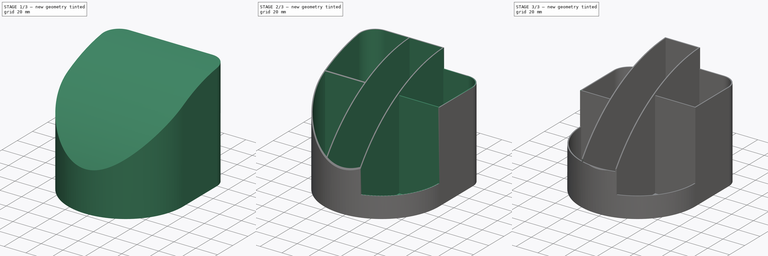
[diagram: build sequence overview — one tinted view per stage of 3, left to right]
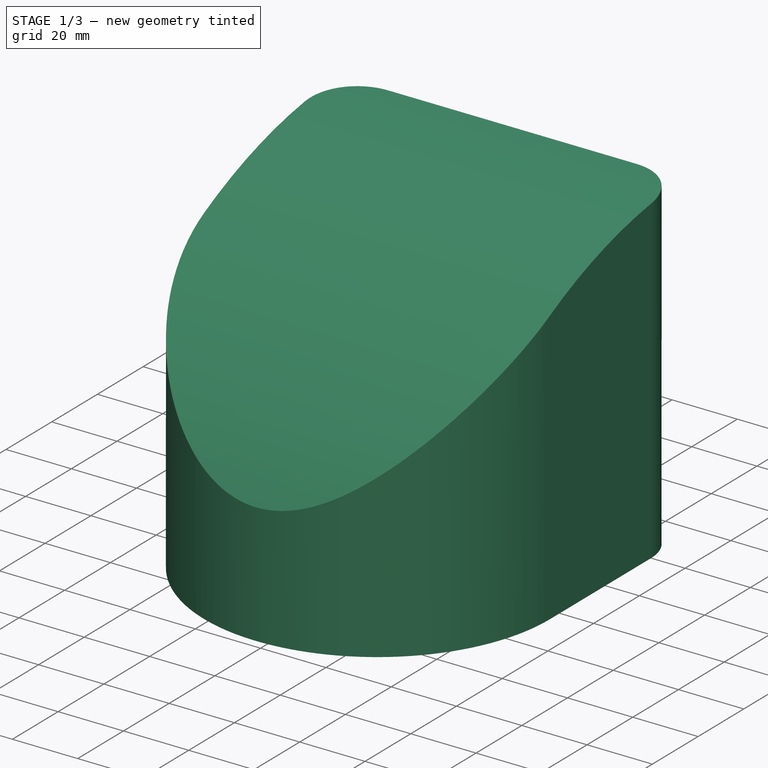
[diagram: stage 1 of 3 — iso view after this stage's code; geometry added in this stage tinted green]
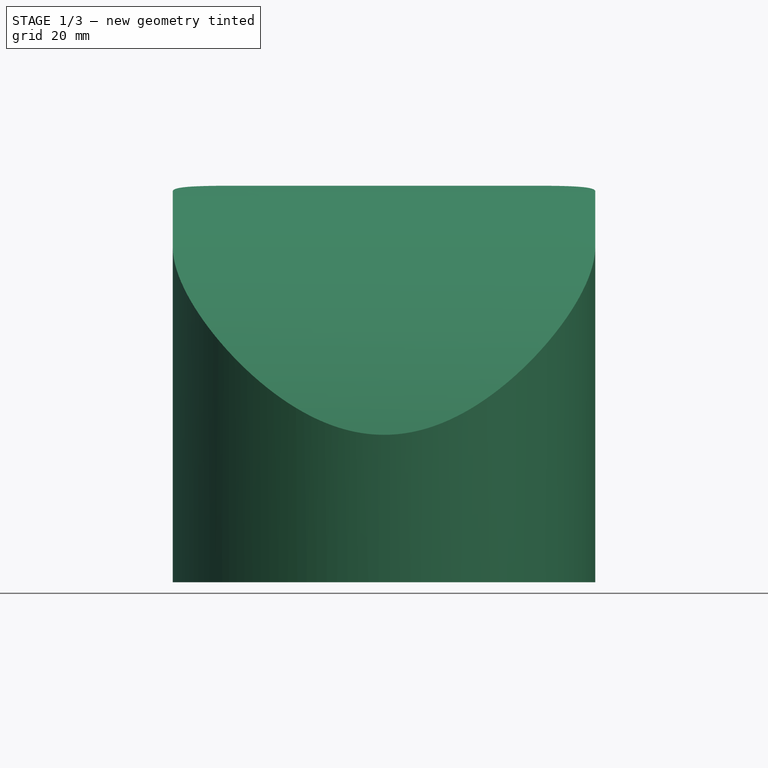
[diagram: stage 1 of 3 — front view after this stage's code; geometry added in this stage tinted green]
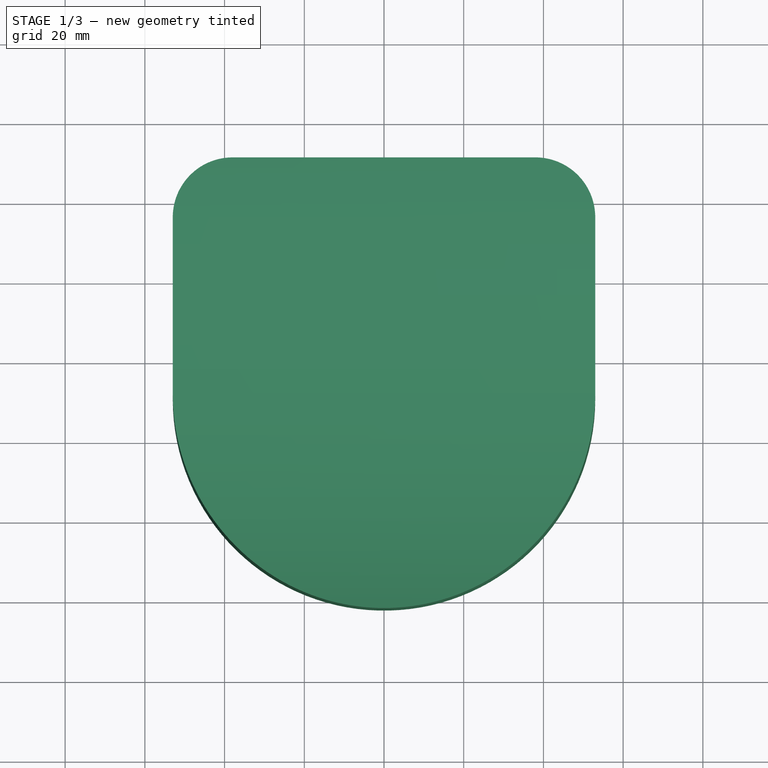
[diagram: stage 1 of 3 — top view after this stage's code; geometry added in this stage tinted green]
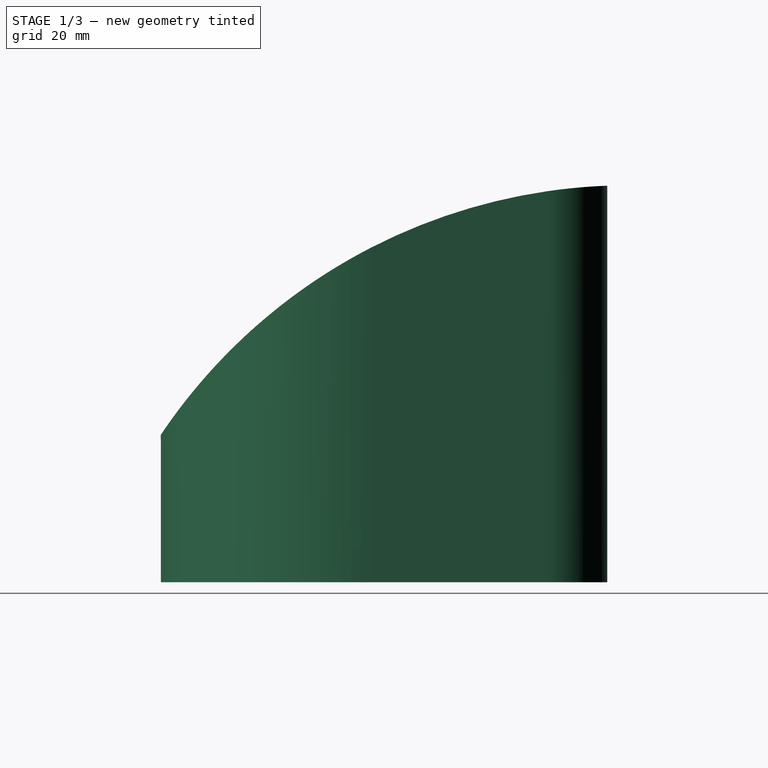
[diagram: stage 1 of 3 — right view after this stage's code; geometry added in this stage tinted green]
FCSTD DOCUMENT  (FreeCAD 0.21R33771 (Git))
Label: Подставка
License: All rights reserved
LicenseURL: https://en.wikipedia.org/wiki/All_rights_reserved
objects: Sketcher::SketchObject×6, PartDesign::Pocket×5, PartDesign::Plane×3, PartDesign::Pad×1, PartDesign::Body×1
note: 22 computed .brp shape members not serialized (recipe doc carries the construction recipe); baked Part::Feature solids carry a one-line shape summary decoded from their .brp

FEATURE [Sketcher::SketchObject] Sketch
  FullyConstrained = true
  MapMode = 5
  Support = -> [XY_Plane]
  sketch-geometry (7):
    g0: LineSegment StartX=-53 StartY=15 StartZ=0 EndX=-53 EndY=-29 EndZ=0
    g1: LineSegment StartX=53 StartY=15 StartZ=0 EndX=53 EndY=-29 EndZ=0
    g2: LineSegment StartX=-38 StartY=30 StartZ=0 EndX=38 EndY=30 EndZ=0
    g3: ArcOfCircle CenterX=0 CenterY=-29 CenterZ=0 NormalX=0 NormalY=0 NormalZ=1 AngleXU=0 Radius=53 StartAngle=3.14159 EndAngle=6.28319
    g4: ArcOfCircle CenterX=38 CenterY=15 CenterZ=0 NormalX=0 NormalY=0 NormalZ=1 AngleXU=0 Radius=15 StartAngle=1e-16 EndAngle=1.5708
    g5: ArcOfCircle CenterX=-38 CenterY=15 CenterZ=0 NormalX=0 NormalY=0 NormalZ=1 AngleXU=0 Radius=15 StartAngle=1.5708 EndAngle=3.14159
    g6: GeomPoint X=0 Y=-82 Z=0
  constraints (17):
    c: Horizontal(g2)
    c: Coincident(g5,g0)
    c: Equal(g4,g5)
    c: Symmetric(g1,g0,g-2)
    c: Vertical(g1)
    c: Tangent(g4,g2) = 1.5708
    c: Tangent(g4,g1) = 1.5708
    c: Tangent(g5,g2) = 1.5708
    c: Tangent(g5,g-1)
    c: Tangent(g3,g0) = -1.5708
    c: PointOnObject(g3,g-2)
    c: Radius(g3) = 53
    c: Radius(g4) = 15
    c: PointOnObject(g6,g3)
    c: PointOnObject(g6,g-2)
    c: DistanceY(g6,g2) = 112
    c: Tangent(g3,g1) = 1.5708
FEATURE [PartDesign::Pad] Pad
  Direction = (0,0,1)
  Length = 99.5
  Length2 = 10
  Profile = -> Sketch
  ReferenceAxis = -> Sketch [N_Axis]
  Type = 0
FEATURE [PartDesign::Plane] DatumPlane
  Length = 135.617
  MapMode = 5
  Placement = pos=(53,0,0) rot=(0.57735,0.57735,0.57735;2.0944rad)
  ResizeMode = 0
  Support = -> [Pad]
  Width = 148.117
FEATURE [Sketcher::SketchObject] Sketch001
  ExternalGeometry = -> [Pad]
  FullyConstrained = false
  MapMode = 5
  Placement = pos=(53,0,0) rot=(0.57735,0.57735,0.57735;2.0944rad)
  Support = -> [DatumPlane]
  sketch-geometry (5):
    g0: ArcOfCircle CenterX=35.3888 CenterY=-41.7587 CenterZ=0 NormalX=0 NormalY=0 NormalZ=1 AngleXU=0 Radius=141.361 StartAngle=1.60893 EndAngle=2.55065
    g1: LineSegment StartX=-82 StartY=37 StartZ=0 EndX=-89.5557 EndY=37 EndZ=0
    g2: LineSegment StartX=30 StartY=99.5 StartZ=0 EndX=30 EndY=106.401 EndZ=0
    g3: LineSegment StartX=30 StartY=106.401 StartZ=0 EndX=-89.5557 EndY=106.401 EndZ=0
    g4: LineSegment StartX=-89.5557 StartY=106.401 StartZ=0 EndX=-89.5557 EndY=37 EndZ=0
  constraints (12):
    c: DistanceY(g-4,g0) = 37
    c: Vertical(g-4,g0)
    c: Coincident(g0,g-6)
    c: Coincident(g1,g0)
    c: Coincident(g2,g0)
    c: Coincident(g3,g2)
    c: Horizontal(g3)
    c: Coincident(g4,g3)
    c: Coincident(g4,g1)
    c: Vertical(g4)
    c: Horizontal(g1)
    c: Vertical(g2)
FEATURE [PartDesign::Pocket] Pocket
  BaseFeature = -> Pad
  Direction = (-1,0,0)
  Length = 5
  Length2 = 5
  Profile = -> Sketch001
  ReferenceAxis = -> Sketch001 [N_Axis]
  Type = 1
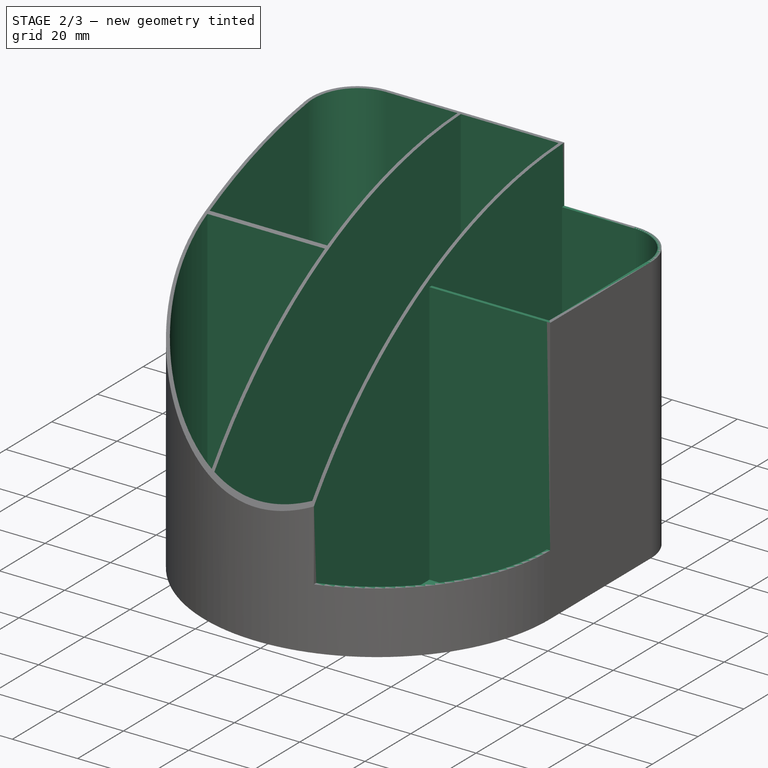
[diagram: stage 2 of 3 — iso view after this stage's code; geometry added in this stage tinted green]
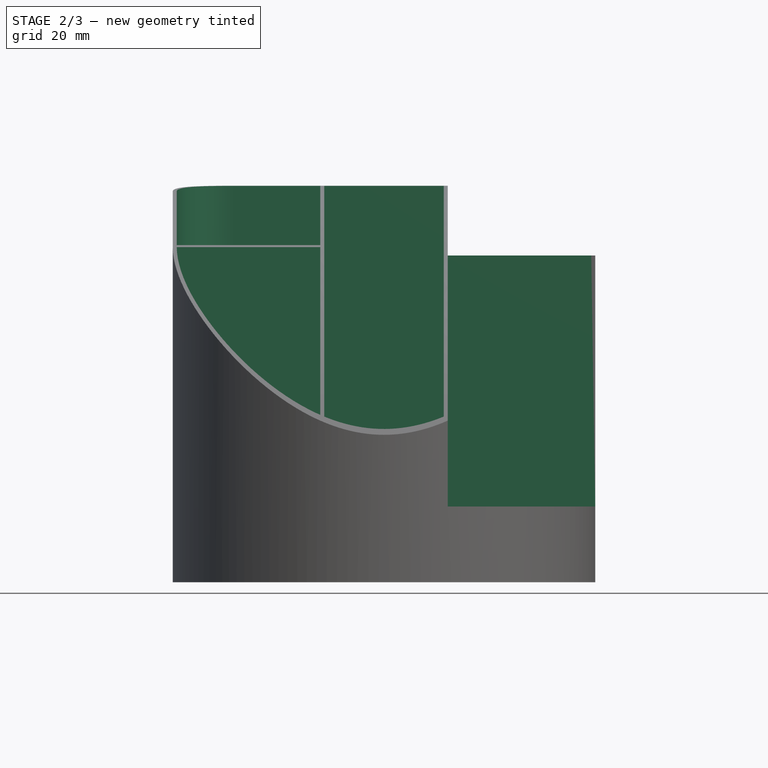
[diagram: stage 2 of 3 — front view after this stage's code; geometry added in this stage tinted green]
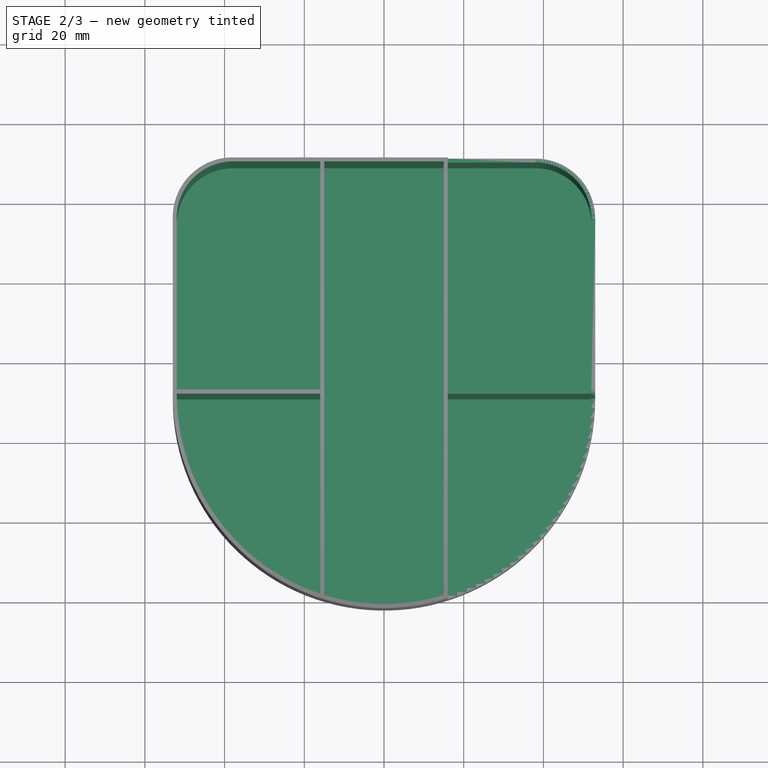
[diagram: stage 2 of 3 — top view after this stage's code; geometry added in this stage tinted green]
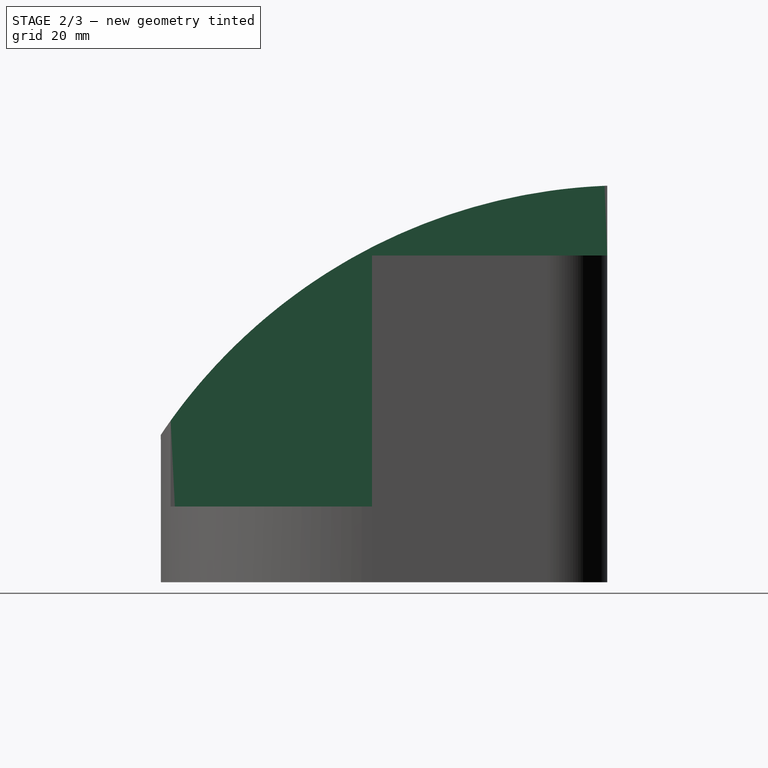
[diagram: stage 2 of 3 — right view after this stage's code; geometry added in this stage tinted green]
FEATURE [PartDesign::Plane] DatumPlane001
  Length = 127.792
  Placement = pos=(0,0,106) rot=(0,0,1;0rad)
  ResizeMode = 0
  Width = 133.792
FEATURE [Sketcher::SketchObject] Sketch002
  ExternalGeometry = -> [Pocket]
  FullyConstrained = false
  MapMode = 5
  Placement = pos=(0,0,106) rot=(0,0,1;0rad)
  Support = -> [DatumPlane001]
  sketch-geometry (26):
    g0: ArcOfCircle CenterX=-37.8306 CenterY=14.8306 CenterZ=0 NormalX=0 NormalY=0 NormalZ=1 AngleXU=0 Radius=15.1703 StartAngle=1.58196 EndAngle=3.13043
    g1: ArcOfCircle CenterX=38 CenterY=15 CenterZ=0 NormalX=0 NormalY=0 NormalZ=1 AngleXU=0 Radius=15 StartAngle=1.917e-13 EndAngle=1.5708
    g2: LineSegment StartX=-53 StartY=15 StartZ=0 EndX=-53 EndY=-29 EndZ=0
    g3: LineSegment StartX=53 StartY=-29 StartZ=0 EndX=53 EndY=15 EndZ=0
    g4: LineSegment StartX=38 StartY=30 StartZ=0 EndX=-38 EndY=30 EndZ=0
    g5: ArcOfCircle CenterX=1e-16 CenterY=-29 CenterZ=0 NormalX=0 NormalY=0 NormalZ=1 AngleXU=0 Radius=53 StartAngle=3.14159 EndAngle=6.28319
    g6: LineSegment StartX=-52 StartY=-29 StartZ=0 EndX=-16 EndY=-29 EndZ=0
    g7: LineSegment StartX=-16 StartY=-29 StartZ=0 EndX=-16 EndY=-78.4773 EndZ=0
    g8: LineSegment StartX=-15 StartY=29 StartZ=0 EndX=15 EndY=29 EndZ=0
    g9: LineSegment StartX=15 StartY=29 StartZ=0 EndX=15 EndY=-78.7896 EndZ=0
    g10: LineSegment StartX=-15 StartY=29 StartZ=0 EndX=-15 EndY=-78.7896 EndZ=0
    g11: LineSegment StartX=52 StartY=-29 StartZ=0 EndX=16 EndY=-29 EndZ=0
    g12: LineSegment StartX=16 StartY=-29 StartZ=0 EndX=16 EndY=-78.4773 EndZ=0
    g13: ArcOfCircle CenterX=1e-16 CenterY=-29 CenterZ=0 NormalX=0 NormalY=0 NormalZ=1 AngleXU=0 Radius=52 StartAngle=3.14159 EndAngle=4.39962
    g14: ArcOfCircle CenterX=1e-16 CenterY=-29 CenterZ=0 NormalX=0 NormalY=0 NormalZ=1 AngleXU=0 Radius=52 StartAngle=4.41977 EndAngle=5.00501
    g15: ArcOfCircle CenterX=1e-16 CenterY=-29 CenterZ=0 NormalX=0 NormalY=0 NormalZ=1 AngleXU=0 Radius=52 StartAngle=5.02516 EndAngle=6.28319
    g16: LineSegment StartX=-16 StartY=29 StartZ=0 EndX=-38 EndY=29 EndZ=0
    g17: LineSegment StartX=-52 StartY=15 StartZ=0 EndX=-52 EndY=-28 EndZ=0
    g18: LineSegment StartX=-52 StartY=-28 StartZ=0 EndX=-16 EndY=-28 EndZ=0
    g19: LineSegment StartX=-16 StartY=-28 StartZ=0 EndX=-16 EndY=29 EndZ=0
    g20: LineSegment StartX=16 StartY=29 StartZ=0 EndX=38 EndY=29 EndZ=0
    g21: LineSegment StartX=52 StartY=15 StartZ=0 EndX=52 EndY=-28 EndZ=0
    g22: LineSegment StartX=52 StartY=-28 StartZ=0 EndX=16 EndY=-28 EndZ=0
    g23: LineSegment StartX=16 StartY=-28 StartZ=0 EndX=16 EndY=29 EndZ=0
    g24: ArcOfCircle CenterX=-37.8306 CenterY=14.8306 CenterZ=0 NormalX=0 NormalY=0 NormalZ=1 AngleXU=0 Radius=14.1704 StartAngle=1.58275 EndAngle=3.12964
    g25: ArcOfCircle CenterX=38 CenterY=15 CenterZ=0 NormalX=0 NormalY=0 NormalZ=1 AngleXU=0 Radius=14 StartAngle=2.054e-13 EndAngle=1.5708
  constraints (71):
    c: Coincident(g0,g-7)
    c: Coincident(g1,g-4)
    c: Coincident(g1,g-5)
    c: Coincident(g2,g0)
    c: Coincident(g3,g1)
    c: Coincident(g4,g1)
    c: Coincident(g4,g0)
    c: Coincident(g-6,g0)
    c: Vertical(g1,g1)
    c: PointOnObject(g5,g-2)
    c: Coincident(g5,g2)
    c: Coincident(g5,g3)
    c: Coincident(g2,g-8)
    c: Coincident(g13,g5)
    c: Coincident(g6,g13)
    c: Horizontal(g6)
    c: Coincident(g7,g6)
    c: Vertical(g7)
    c: Coincident(g9,g8)
    c: Vertical(g9)
    c: Coincident(g10,g8)
    c: Vertical(g10)
    c: Horizontal(g13,g2)
    c: Coincident(g11,g15)
    c: Horizontal(g11)
    c: Coincident(g12,g11)
    c: Vertical(g12)
    c: DistanceX(g15,g3) = 1
    c: DistanceX(g6,g8) = 1
    c: Symmetric(g11,g6,g-2)
    c: DistanceX(g8,g8) = 30
    c: Coincident(g13,g14)
    c: Coincident(g13,g7)
    c: Coincident(g14,g10)
    c: Coincident(g14,g15)
    c: DistanceX(g2,g6) = 1
    c: PointOnObject(g10,g13)
    c: PointOnObject(g-9,g5)
    c: DistanceX(g8,g11) = 1
    c: Coincident(g14,g9)
    c: Coincident(g15,g12)
    c: DistanceY(g8,g1) = 1
    c: Horizontal(g8)
    c: Coincident(g17,g18)
    c: Coincident(g18,g19)
    c: Coincident(g19,g16)
    c: Horizontal(g16)
    c: Horizontal(g18)
    c: Vertical(g17)
    c: Vertical(g19)
    c: Coincident(g21,g22)
    c: Coincident(g22,g23)
    c: Coincident(g23,g20)
    c: Horizontal(g20)
    c: Horizontal(g22)
    c: Vertical(g23)
    c: Coincident(g24,g17)
    c: Coincident(g24,g16)
    c: Coincident(g25,g1)
    c: Coincident(g25,g20)
    c: Coincident(g21,g25)
    c: Vertical(g20,g1)
    c: DistanceY(g20,g1) = 1
    c: DistanceX(g8,g20) = 1
    c: DistanceY(g11,g22) = 1
    c: Horizontal(g21,g1)
    c: Symmetric(g20,g16,g-2)
    c: Symmetric(g17,g21,g-2)
    c: Symmetric(g17,g21,g-2)
    c: Vertical(g16,g0)
    c: Coincident(g24,g0)
FEATURE [PartDesign::Pocket] Pocket001
  BaseFeature = -> Pocket
  Direction = (0,0,-1)
  Length = 0
  Length2 = 5
  Offset = -1
  Profile = -> Sketch002
  ReferenceAxis = -> Sketch002 [N_Axis]
  Type = 3
  UpToFace = -> Pocket [Face2]
FEATURE [Sketcher::SketchObject] Sketch003
  ExternalGeometry = -> [Pocket001]
  FullyConstrained = true
  MapMode = 5
  Placement = pos=(53,0,0) rot=(0.57735,0.57735,0.57735;2.0944rad)
  Support = -> [DatumPlane]
  sketch-geometry (7):
    g0: LineSegment StartX=-29 StartY=19 StartZ=0 EndX=-81 EndY=19 EndZ=0
    g1: LineSegment StartX=-81 StartY=19 StartZ=0 EndX=-81 EndY=99.5 EndZ=0
    g2: LineSegment StartX=-81 StartY=99.5 StartZ=0 EndX=-29.5 EndY=99.5 EndZ=0
    g3: LineSegment StartX=-29 StartY=82 StartZ=0 EndX=-29 EndY=19 EndZ=0
    g4: LineSegment StartX=-29.5 StartY=99.5 StartZ=0 EndX=30 EndY=99.5 EndZ=0
    g5: LineSegment StartX=30 StartY=99.5 StartZ=0 EndX=30 EndY=82 EndZ=0
    g6: LineSegment StartX=30 StartY=82 StartZ=0 EndX=-29 EndY=82 EndZ=0
  constraints (20):
    c: Coincident(g0,g1)
    c: Coincident(g1,g2)
    c: Coincident(g3,g0)
    c: Horizontal(g0)
    c: Horizontal(g2)
    c: Vertical(g1)
    c: Vertical(g3)
    c: Horizontal(g2,g-5)
    c: DistanceX(g-4,g0) = 1
    c: DistanceY(g-1,g0) = 19
    c: DistanceX(g2,g-4) = 0.5
    c: Coincident(g4,g5)
    c: Coincident(g5,g6)
    c: Horizontal(g6)
    c: Vertical(g5)
    c: DistanceY(g-1,g5) = 82
    c: Coincident(g4,g-5)
    c: Coincident(g3,g6)
    c: Coincident(g4,g2)
    c: Vertical(g3,g-4)
FEATURE [PartDesign::Pocket] Pocket002
  BaseFeature = -> Pocket001
  Direction = (-1,0,0)
  Length = 0
  Length2 = 5
  Profile = -> Sketch003
  ReferenceAxis = -> Sketch003 [N_Axis]
  Type = 3
  UpToFace = -> Pocket001 [Face26]
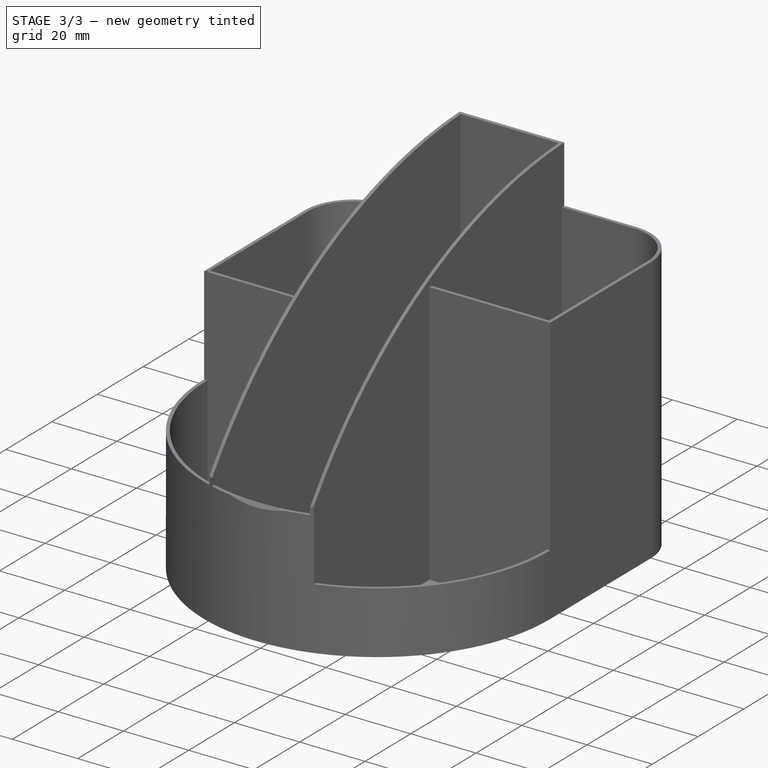
[diagram: stage 3 of 3 — iso view after this stage's code; geometry added in this stage tinted green]
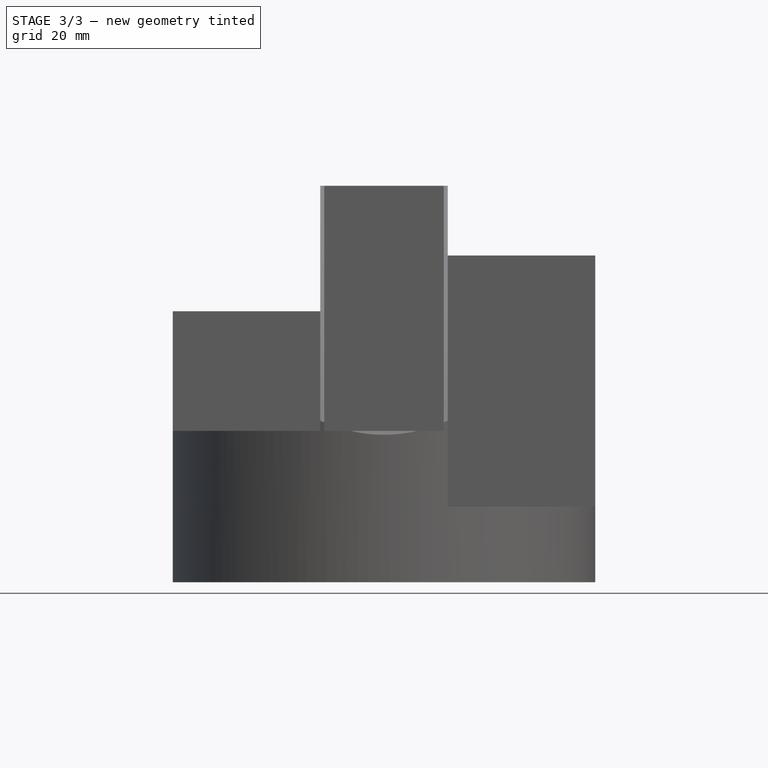
[diagram: stage 3 of 3 — front view after this stage's code; geometry added in this stage tinted green]
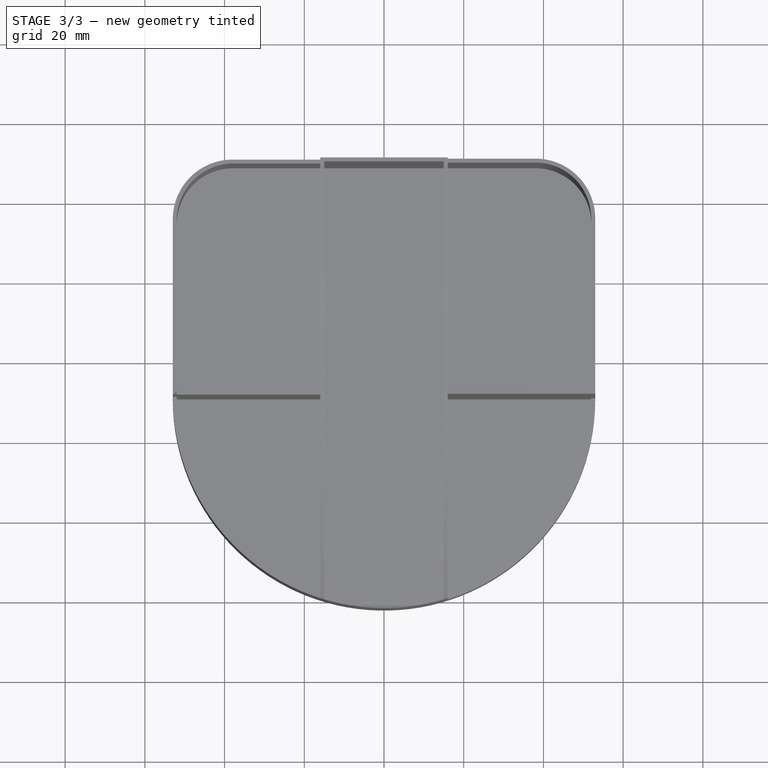
[diagram: stage 3 of 3 — top view after this stage's code; geometry added in this stage tinted green]
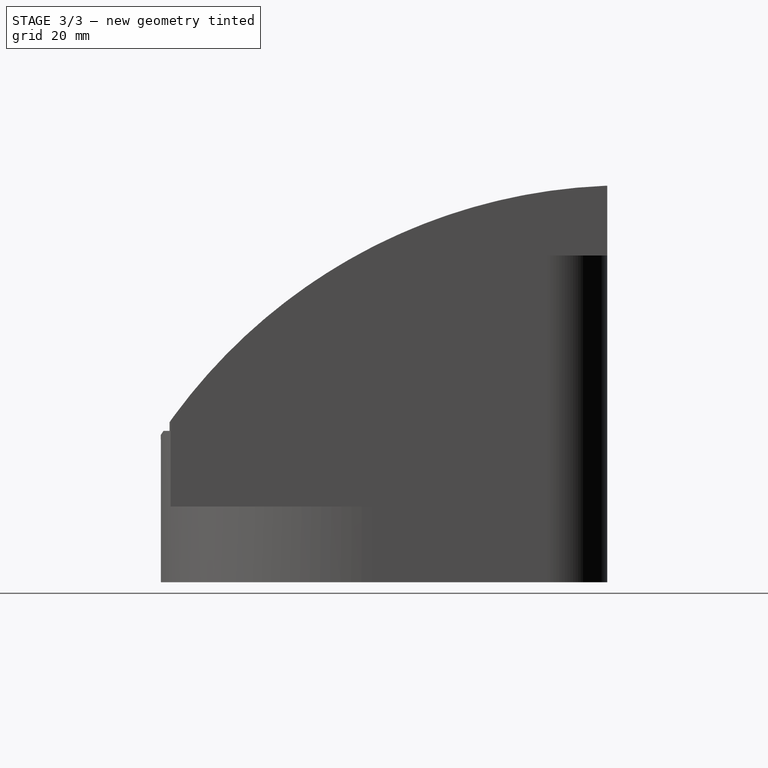
[diagram: stage 3 of 3 — right view after this stage's code; geometry added in this stage tinted green]
FEATURE [PartDesign::Plane] DatumPlane002
  Length = 135.617
  MapMode = 5
  Placement = pos=(-53,0,0) rot=(0.57735,-0.57735,-0.57735;2.0944rad)
  ResizeMode = 0
  Support = -> [Pocket002]
  Width = 148.117
FEATURE [Sketcher::SketchObject] Sketch004
  ExternalGeometry = -> [Pocket002]
  FullyConstrained = true
  MapMode = 5
  Placement = pos=(-53,0,0) rot=(0.57735,-0.57735,-0.57735;2.0944rad)
  Support = -> [DatumPlane002]
  sketch-geometry (6):
    g0: LineSegment StartX=81 StartY=38 StartZ=0 EndX=29 EndY=38 EndZ=0
    g1: LineSegment StartX=29 StartY=38 StartZ=0 EndX=29 EndY=68 EndZ=0
    g2: LineSegment StartX=-30 StartY=99.5 StartZ=0 EndX=81 EndY=99.5 EndZ=0
    g3: LineSegment StartX=81 StartY=99.5 StartZ=0 EndX=81 EndY=38 EndZ=0
    g4: LineSegment StartX=-30 StartY=99.5 StartZ=0 EndX=-30 EndY=68 EndZ=0
    g5: LineSegment StartX=-30 StartY=68 StartZ=0 EndX=29 EndY=68 EndZ=0
  constraints (17):
    c: Coincident(g0,g1)
    c: Coincident(g2,g3)
    c: Coincident(g3,g0)
    c: Horizontal(g0)
    c: Horizontal(g2)
    c: Vertical(g1)
    c: Vertical(g3)
    c: DistanceY(g-1,g0) = 38
    c: DistanceX(g0,g-4) = 1
    c: Coincident(g2,g-7)
    c: Coincident(g4,g2)
    c: Vertical(g4)
    c: Coincident(g5,g4)
    c: Coincident(g5,g1)
    c: Horizontal(g5)
    c: DistanceY(g-1,g1) = 68
    c: Vertical(g1,g-4)
FEATURE [PartDesign::Pocket] Pocket003
  BaseFeature = -> Pocket002
  Direction = (1,0,0)
  Length = 0
  Length2 = 5
  Profile = -> Sketch004
  ReferenceAxis = -> Sketch004 [N_Axis]
  Type = 3
  UpToFace = -> Pocket002 [Face17]
FEATURE [Sketcher::SketchObject] Sketch005
  AttachmentOffset = pos=(120,0,0) rot=(0,1,0;1.5708rad)
  ExternalGeometry = -> [Pocket003]
  FullyConstrained = false
  MapMode = 5
  Placement = pos=(-53,-120,0) rot=(1,0,0;1.5708rad)
  Support = -> [DatumPlane002]
  sketch-geometry (4):
    g0: LineSegment StartX=38 StartY=38 StartZ=0 EndX=68 EndY=38 EndZ=0
    g1: LineSegment StartX=68 StartY=38 StartZ=0 EndX=68 EndY=54.4441 EndZ=0
    g2: LineSegment StartX=68 StartY=54.4441 StartZ=0 EndX=38 EndY=54.4441 EndZ=0
    g3: LineSegment StartX=38 StartY=54.4441 StartZ=0 EndX=38 EndY=38 EndZ=0
  constraints (11):
    c: PointOnObject(g0,g-3)
    c: PointOnObject(g0,g-4)
    c: Horizontal(g0)
    c: Horizontal(g0,g-5)
    c: Coincident(g0,g1)
    c: Coincident(g1,g2)
    c: Horizontal(g2)
    c: Coincident(g2,g3)
    c: Coincident(g3,g0)
    c: Vertical(g1)
    c: Vertical(g3)
FEATURE [PartDesign::Pocket] Pocket004
  BaseFeature = -> Pocket003
  Direction = (2e-16,1,0)
  Length = 0
  Length2 = 5
  Profile = -> Sketch005
  ReferenceAxis = -> Sketch005 [N_Axis]
  Type = 3
  UpToFace = -> Pocket003 [Face39]
FEATURE [PartDesign::Body] Body  label="Тело"
  Group = -> [Sketch,Pad,DatumPlane,Sketch001,Pocket,DatumPlane001,Sketch002,Pocket001,Sketch003,Pocket002,DatumPlane002,Sketch004,Pocket003,Sketch005,Pocket004]
  Origin = -> Origin
  Tip = -> Pocket004
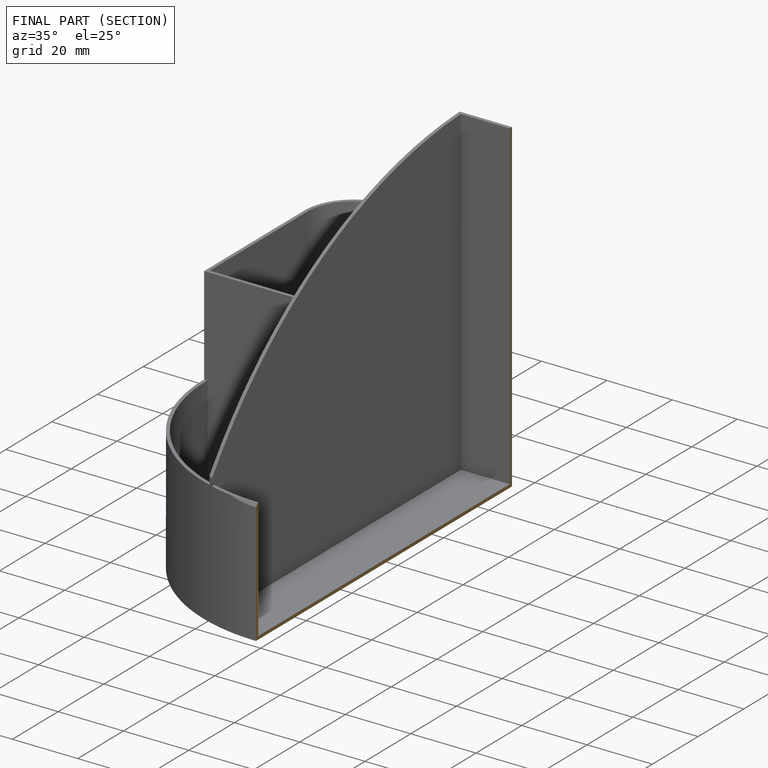
[diagram: finished part — half-section view (interior)]
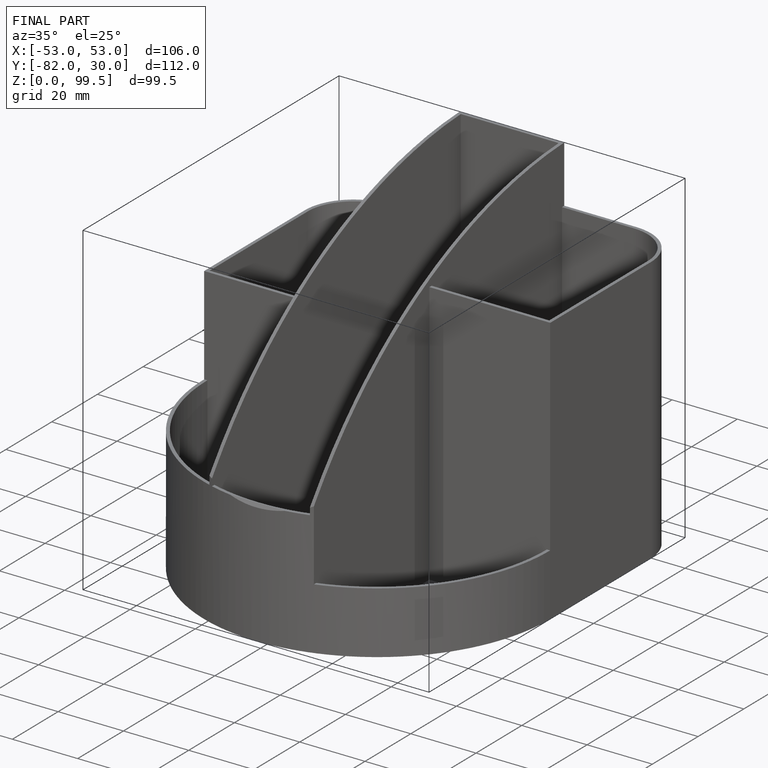
[diagram: finished part — iso view with bounding-box wireframe]
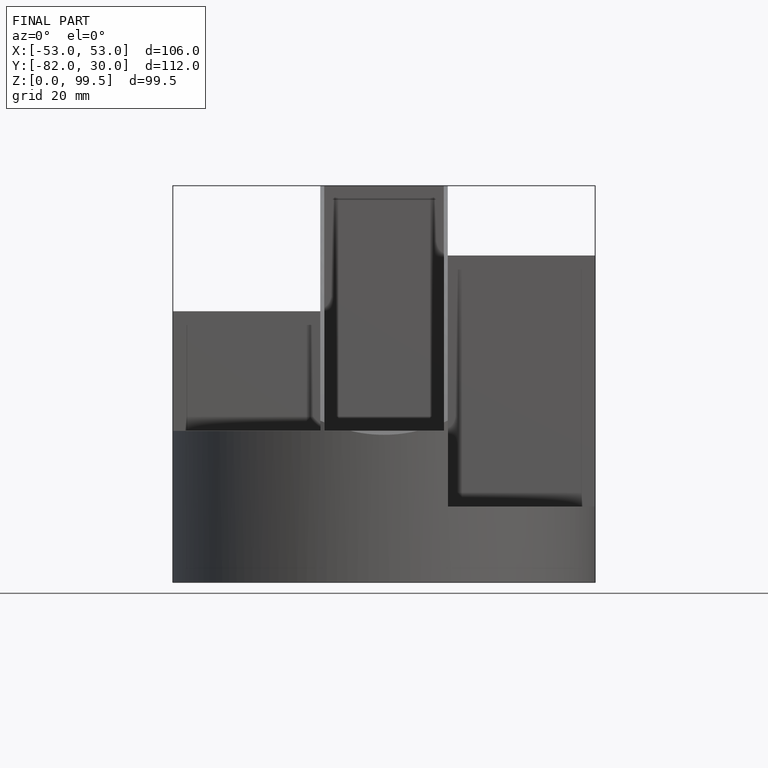
[diagram: finished part — front view with bounding-box wireframe]
